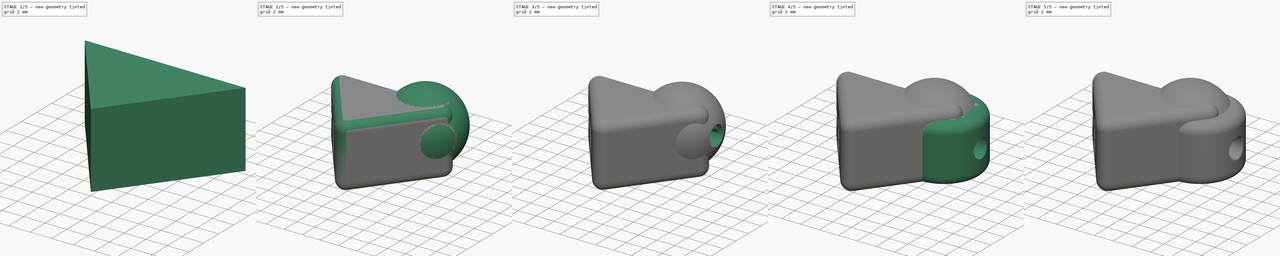
[diagram: build sequence overview — one tinted view per stage of 5, left to right]
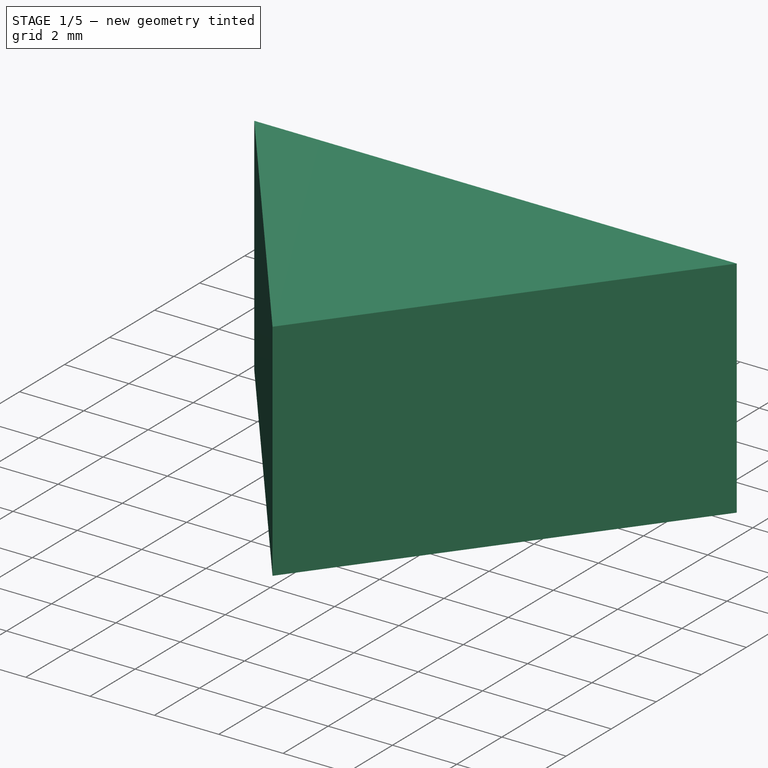
[diagram: stage 1 of 5 — iso view after this stage's code; geometry added in this stage tinted green]
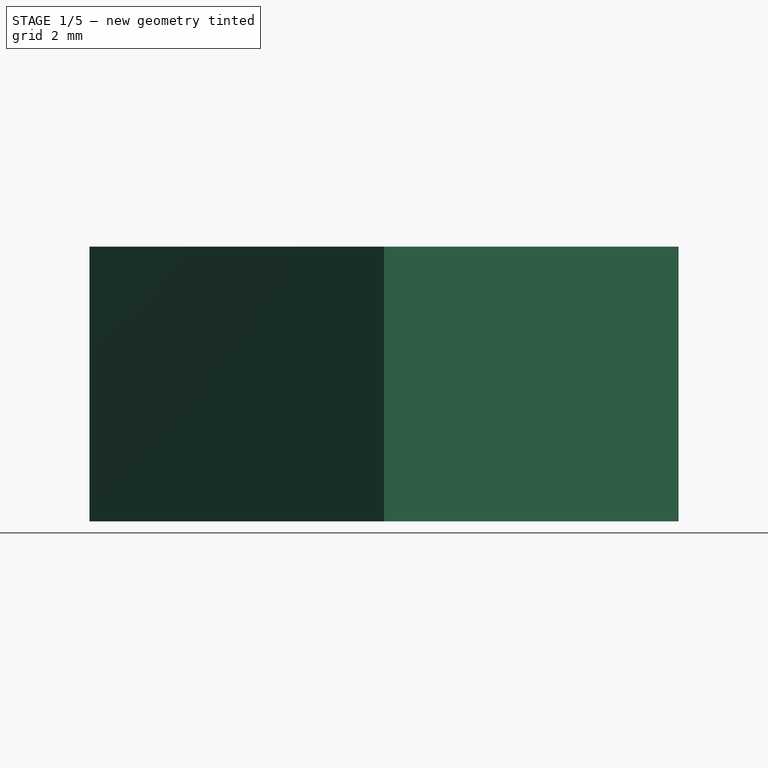
[diagram: stage 1 of 5 — front view after this stage's code; geometry added in this stage tinted green]
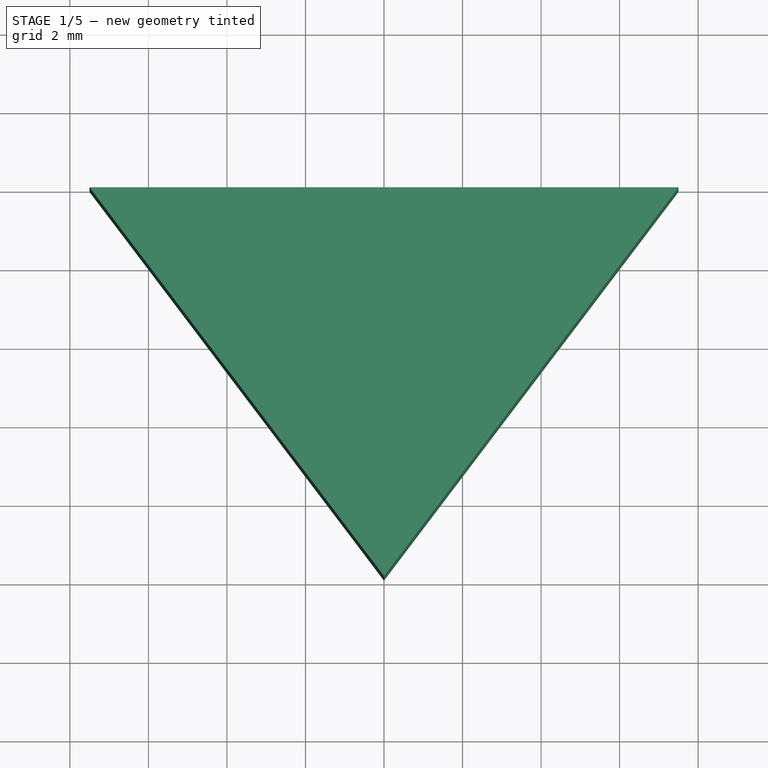
[diagram: stage 1 of 5 — top view after this stage's code; geometry added in this stage tinted green]
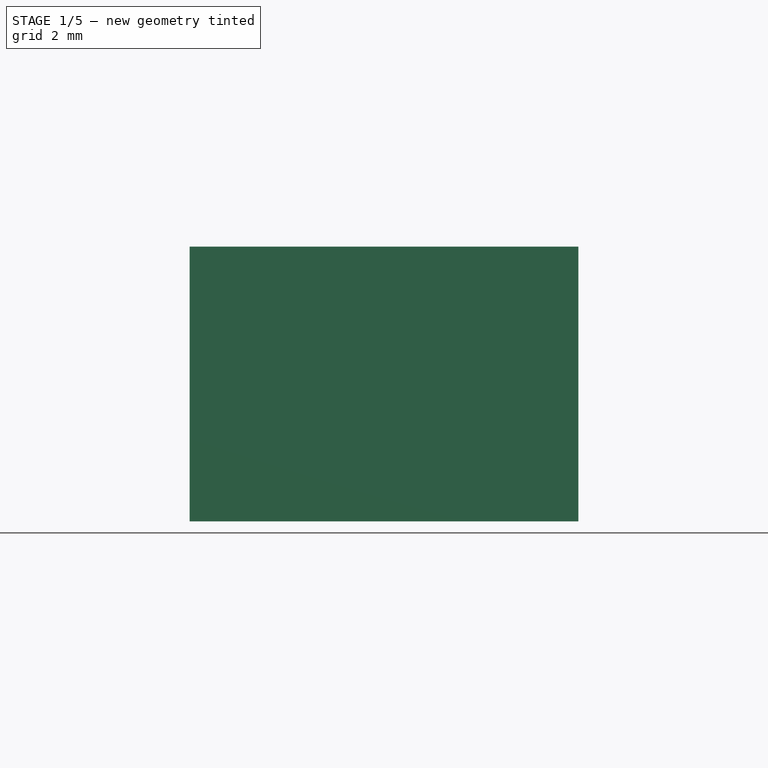
[diagram: stage 1 of 5 — right view after this stage's code; geometry added in this stage tinted green]
FCSTD DOCUMENT  (FreeCAD 0.19R24276 (Git))
Label: mon-cheri
License: All rights reserved
LicenseURL: http://en.wikipedia.org/wiki/All_rights_reserved
objects: Sketcher::SketchObject×16, PartDesign::Fillet×16, PartDesign::Hole×8, PartDesign::Pad×6, PartDesign::Body×6, PartDesign::Pocket×4, App::DocumentObjectGroup×3, PartDesign::Mirrored×2, PartDesign::Chamfer×2, PartDesign::Plane×2, Spreadsheet::Sheet×1
note: 98 computed .brp shape members not serialized (recipe doc carries the construction recipe); baked Part::Feature solids carry a one-line shape summary decoded from their .brp

FEATURE [Sketcher::SketchObject] Sketch  label="BodySketch-Tri"
  FullyConstrained = true
  MapMode = 5
  Placement = pos=(0,0,0) rot=(1,0,0;3.14159rad)
  expr: Constraints[5] = Spreadsheet.TriHeight
  expr: Constraints[7] = Spreadsheet.TriLength / 2
  sketch-geometry (3):
    g0: LineSegment StartX=0 StartY=0 StartZ=0 EndX=-7.5 EndY=0 EndZ=0
    g1: LineSegment StartX=-7.5 StartY=0 StartZ=0 EndX=0 EndY=9.9 EndZ=0
    g2: LineSegment StartX=0 StartY=9.9 StartZ=0 EndX=0 EndY=0 EndZ=0
  constraints (8):
    c: Coincident(g0,g-1)
    c: PointOnObject(g0,g-1)
    c: PointOnObject(g1,g-2)
    c: Coincident(g2,g1)
    c: Coincident(g0,g1)
    c: DistanceY(g2,g2) = 9.9
    c: Coincident(g2,g0)
    c: DistanceX(g0,g0) = 7.5
FEATURE [PartDesign::Pad] Pad  label="BodyHalf-Tri-m3"
  Direction = (1,1,1)
  Length = 5
  Length2 = 100
  Placement = pos=(0,0,0) rot=(1,0,0;3.14159rad)
  Profile = -> Sketch
  Reversed = true
  Type = 0
  expr: Length = Spreadsheet.TriWidth
FEATURE [PartDesign::Mirrored] Mirrored  label="MirrorBody-Tri-m3"
  BaseFeature = -> Pad
  MirrorPlane = -> Sketch [V_Axis]
  Originals = -> [Pad]
  Placement = pos=(0,0,0) rot=(1,0,0;3.14159rad)
  Refine = true
FEATURE [PartDesign::Fillet] Fillet  label="FilletEdges-Tri-m3"
  Base = -> Mirrored [Face2,Face1,Face3]
  BaseFeature = -> Mirrored
  Placement = pos=(0,0,0) rot=(1,0,0;3.14159rad)
  Radius = 1
  SupportTransform = false
FEATURE [PartDesign::Body] Body002  label="ball-m3"
  Group = -> [Sketch005,Pad002,Fillet004,Sketch006,Hole001,Sketch007,Pocket002,Chamfer,Fillet005,Fillet009]
  Origin = -> Origin002
  Placement = pos=(0,31.2,-0.4) rot=(0,0,1;0rad)
  Tip = -> Fillet009
FEATURE [Sketcher::SketchObject] Sketch010  label="BoltSketch-Tri-m3"
  ExternalGeometry = -> [Fillet]
  FullyConstrained = true
  MapMode = 5
  Placement = pos=(-4.76517,-3.60998,-4e-16) rot=(0.331544,0.667113,-0.667113;3.78187rad)
  Support = -> [Fillet]
  expr: Constraints[2] = Spreadsheet.BoltHole
  sketch-geometry (2):
    g0: LineSegment StartX=2.5168 StartY=-1 StartZ=0 EndX=-6.57121 EndY=-4 EndZ=0
    g1: Circle CenterX=-2.02721 CenterY=-2.5 CenterZ=0 NormalX=0 NormalY=0 NormalZ=1 AngleXU=0 Radius=1.45
  constraints (4):
    c: Coincident(g0,g-3)
    c: Coincident(g0,g-4)
    c: Diameter(g1) = 2.9
    c: Symmetric(g0,g0,g1)
FEATURE [PartDesign::Hole] Hole004  label="BoltHole-Tri-m3"
  BaseFeature = -> Fillet
  Depth = 5
  DepthType = 0
  Diameter = 2.9
  DrillForDepth = false
  DrillPoint = 1
  DrillPointAngle = 118
  HoleCutCountersinkAngle = 90
  HoleCutCustomValues = false
  HoleCutDepth = 0
  HoleCutDiameter = 6.1
  HoleCutType = 0
  ModelActualThread = false
  Placement = pos=(0,0,0) rot=(1,0,0;3.14159rad)
  Profile = -> Sketch010
  Tapered = false
  TaperedAngle = 90
  ThreadAngle = 0
  ThreadClass = 0
  ThreadCutOffInner = 0
  ThreadCutOffOuter = 0
  ThreadDirection = 0
  ThreadFit = 0
  ThreadPitch = 0
  ThreadSize = 0
  ThreadType = 0
  Threaded = false
  expr: Diameter = Spreadsheet.BoltHole
FEATURE [PartDesign::Hole] Hole003  label="CableHole-Tri-m3"
  BaseFeature = -> Hole004
  Depth = 17
  DepthType = 1
  Diameter = 2
  DrillForDepth = false
  DrillPoint = 1
  DrillPointAngle = 118
  HoleCutCountersinkAngle = 90
  HoleCutCustomValues = false
  HoleCutDepth = 0
  HoleCutDiameter = 10
  HoleCutType = 0
  ModelActualThread = false
  Placement = pos=(0,0,0) rot=(1,0,0;3.14159rad)
  Profile = -> Sketch009
  Reversed = true
  Tapered = true
  TaperedAngle = 90
  ThreadAngle = 0
  ThreadClass = 0
  ThreadCutOffInner = 0
  ThreadCutOffOuter = 0
  ThreadDirection = 0
  ThreadFit = 0
  ThreadPitch = 0
  ThreadSize = 0
  ThreadType = 0
  Threaded = false
  expr: Diameter = Spreadsheet.CableBore
  expr: HoleCutDiameter = 10
FEATURE [Sketcher::SketchObject] Sketch013  label="BodySketch-Tri-m4"
  FullyConstrained = true
  MapMode = 5
  Placement = pos=(0,0,0) rot=(1,0,0;3.14159rad)
  expr: Constraints[7] = Spreadsheet.TriLength / 2
  expr: Constraints[5] = Spreadsheet.TriHeight
  sketch-geometry (3):
    g0: LineSegment StartX=0 StartY=0 StartZ=0 EndX=-7.5 EndY=0 EndZ=0
    g1: LineSegment StartX=-7.5 StartY=0 StartZ=0 EndX=0 EndY=9.9 EndZ=0
    g2: LineSegment StartX=0 StartY=9.9 StartZ=0 EndX=0 EndY=0 EndZ=0
  constraints (8):
    c: Coincident(g0,g-1)
    c: PointOnObject(g0,g-1)
    c: PointOnObject(g1,g-2)
    c: Coincident(g2,g1)
    c: Coincident(g0,g1)
    c: DistanceY(g2,g2) = 9.9
    c: Coincident(g2,g0)
    c: DistanceX(g0,g0) = 7.5
FEATURE [PartDesign::Plane] DatumPlane001  label="CableHoleDepth-Tri-m4"
  AttachmentOffset = pos=(0,0,-4) rot=(0,0,1;0rad)
  Length = 60
  MapMode = 5
  Placement = pos=(4,-9e-16,9e-16) rot=(-0.57735,0.57735,0.57735;4.18879rad)
  ResizeMode = 0
  Support = -> [YZ_Plane003]
  Width = 60
  expr: .AttachmentOffset.Base.z = -Spreadsheet.ExtraDepth
FEATURE [Sketcher::SketchObject] Sketch012  label="CableHoleSketch-Tri-m4"
  FullyConstrained = false
  MapMode = 5
  Placement = pos=(4,-9e-16,9e-16) rot=(-0.57735,0.57735,0.57735;4.18879rad)
  Support = -> [DatumPlane001]
  expr: Constraints[0] = Spreadsheet.CableBore
  expr: Constraints[4] = Spreadsheet.TriWidthM4 / 2
  sketch-geometry (2):
    g0: Circle CenterX=2.10386 CenterY=3.5 CenterZ=0 NormalX=0 NormalY=0 NormalZ=1 AngleXU=0 Radius=1
    g1: LineSegment StartX=1.60386 StartY=3.5 StartZ=0 EndX=2.10386 EndY=3.5 EndZ=0
  constraints (5):
    c: Diameter(g0) = 2
    c: Coincident(g0,g1)
    c: DistanceX(g1,g1) = 0.5
    c: Horizontal(g1)
    c: DistanceY(g-1,g0) = 3.5
FEATURE [PartDesign::Pad] Pad003  label="BodyHalf-Tri-m4"
  Direction = (1,1,1)
  Length = 7
  Length2 = 100
  Placement = pos=(0,0,0) rot=(1,0,0;3.14159rad)
  Profile = -> Sketch013
  Reversed = true
  Type = 0
  expr: Length = Spreadsheet.TriWidthM4
FEATURE [PartDesign::Mirrored] Mirrored001  label="MirrorBody-Tri-m4"
  BaseFeature = -> Pad003
  MirrorPlane = -> Sketch013 [V_Axis]
  Originals = -> [Pad003]
  Placement = pos=(0,0,0) rot=(1,0,0;3.14159rad)
  Refine = true
FEATURE [PartDesign::Body] Body003  label="tri-m4"
  Group = -> [Sketch013,Pad003,Mirrored001,Fillet010,DatumPlane001,Sketch012,Sketch011,Hole005,Hole006,Fillet017]
  Origin = -> Origin003
  Placement = pos=(0,0,17) rot=(0,0,1;0rad)
  Tip = -> Fillet017
FEATURE [PartDesign::Fillet] Fillet018  label="HoleFillet-Tri-m3"
  Base = -> Hole003 [Face1]
  BaseFeature = -> Hole003
  Placement = pos=(0,0,0) rot=(1,0,0;3.14159rad)
  Radius = 0.17
  SupportTransform = false
FEATURE [PartDesign::Body] Body  label="tri-m3"
  Group = -> [Sketch,Pad,Mirrored,Fillet,DatumPlane,Sketch009,Sketch010,Hole004,Hole003,Fillet018]
  Origin = -> Origin
  Tip = -> Fillet018
FEATURE [App::DocumentObjectGroup] Group  label="tri"
  Group = -> [Body,Body003]
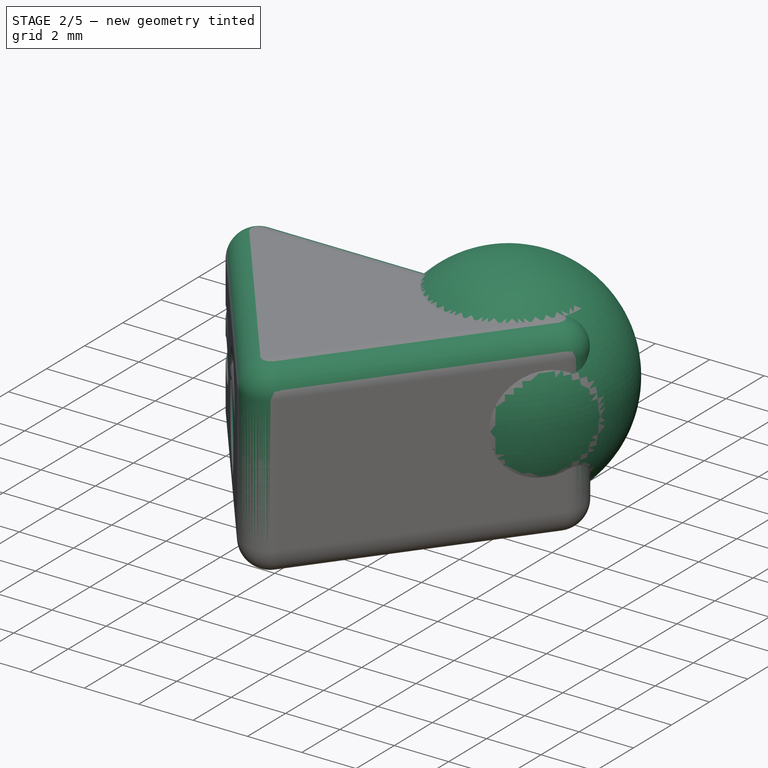
[diagram: stage 2 of 5 — iso view after this stage's code; geometry added in this stage tinted green]
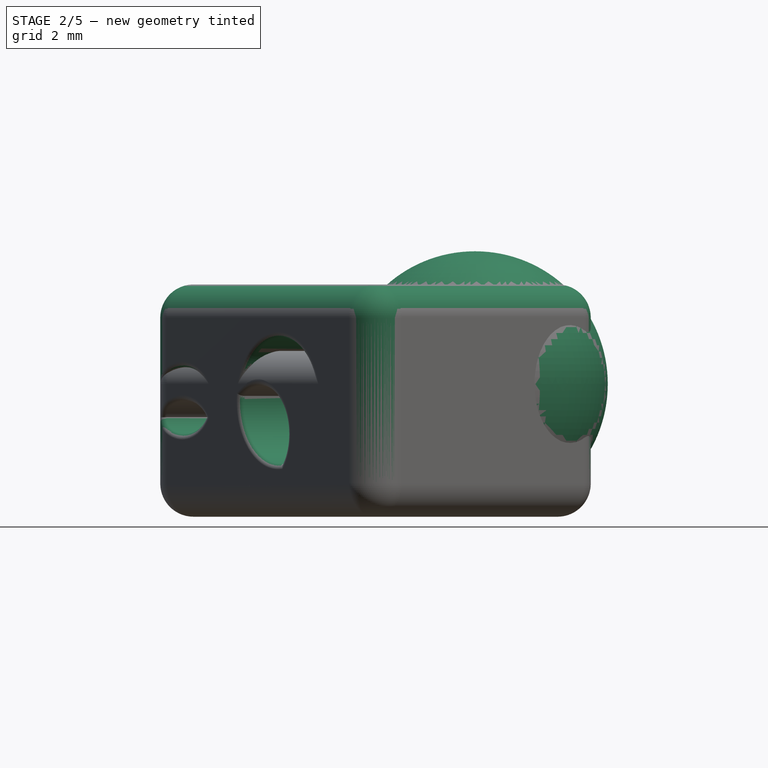
[diagram: stage 2 of 5 — front view after this stage's code; geometry added in this stage tinted green]
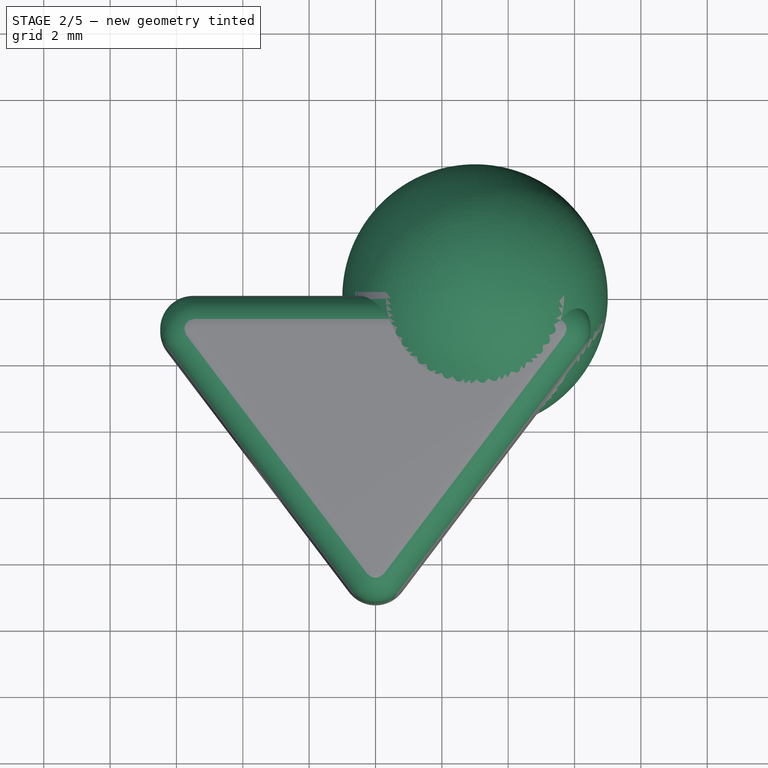
[diagram: stage 2 of 5 — top view after this stage's code; geometry added in this stage tinted green]
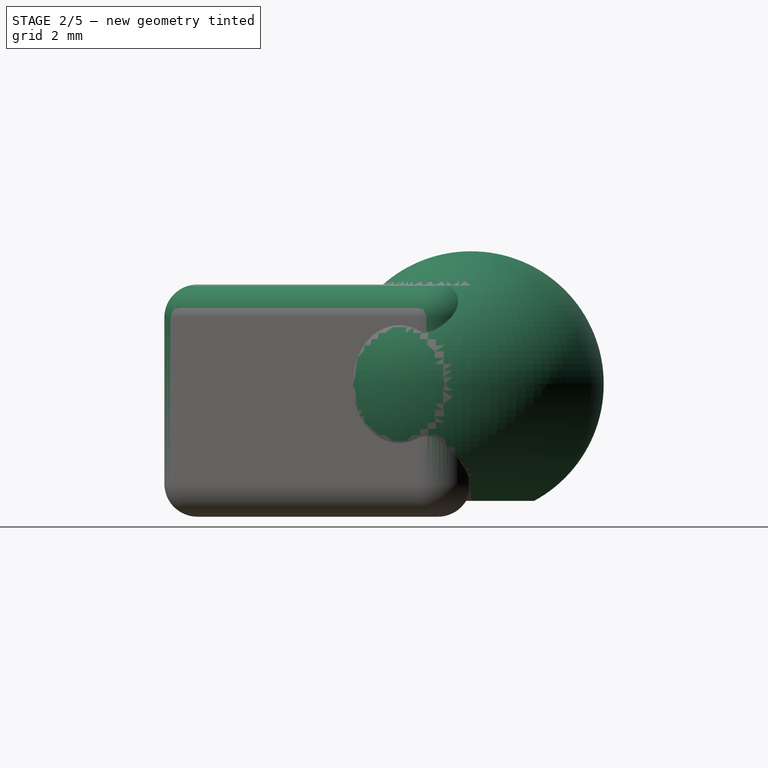
[diagram: stage 2 of 5 — right view after this stage's code; geometry added in this stage tinted green]
FEATURE [PartDesign::Fillet] Fillet010  label="FilletEdges-Tri-m4"
  Base = -> Mirrored001 [Face2,Face1,Face3]
  BaseFeature = -> Mirrored001
  Placement = pos=(0,0,0) rot=(1,0,0;3.14159rad)
  Radius = 1
  SupportTransform = false
FEATURE [Sketcher::SketchObject] Sketch011  label="BoltSketch-Tri-m4"
  ExternalGeometry = -> [Fillet010]
  FullyConstrained = true
  MapMode = 5
  Placement = pos=(-4.76517,-3.60998,-4e-16) rot=(0.331544,0.667113,-0.667113;3.78187rad)
  Support = -> [Fillet010]
  expr: Constraints[2] = Spreadsheet.BoltHoleM4
  sketch-geometry (3):
    g0: LineSegment StartX=2.5168 StartY=-1 StartZ=0 EndX=-6.57121 EndY=-6 EndZ=0
    g1: Circle CenterX=-3.02721 CenterY=-3.5 CenterZ=0 NormalX=0 NormalY=0 NormalZ=1 AngleXU=0 Radius=1.9
    g2: LineSegment StartX=-2.02721 StartY=-3.5 StartZ=0 EndX=-3.02721 EndY=-3.5 EndZ=0
  constraints (7):
    c: Coincident(g0,g-3)
    c: Coincident(g0,g-4)
    c: Diameter(g1) = 3.8
    c: Horizontal(g2)
    c: Symmetric(g0,g0,g2)
    c: Coincident(g1,g2)
    c: DistanceX(g2,g2) = 1
FEATURE [PartDesign::Hole] Hole005  label="BoltHole-Tri-m4"
  BaseFeature = -> Fillet010
  Depth = 6
  DepthType = 0
  Diameter = 3.8
  DrillForDepth = false
  DrillPoint = 1
  DrillPointAngle = 118
  HoleCutCountersinkAngle = 90
  HoleCutCustomValues = false
  HoleCutDepth = 0
  HoleCutDiameter = 6.1
  HoleCutType = 0
  ModelActualThread = false
  Placement = pos=(0,0,0) rot=(1,0,0;3.14159rad)
  Profile = -> Sketch011
  Tapered = false
  TaperedAngle = 90
  ThreadAngle = 0
  ThreadClass = 0
  ThreadCutOffInner = 0
  ThreadCutOffOuter = 0
  ThreadDirection = 0
  ThreadFit = 0
  ThreadPitch = 0
  ThreadSize = 0
  ThreadType = 0
  Threaded = false
  expr: Diameter = Spreadsheet.BoltHoleM4
FEATURE [PartDesign::Hole] Hole006  label="CableHole-Tri-m4"
  BaseFeature = -> Hole005
  Depth = 17
  DepthType = 1
  Diameter = 2
  DrillForDepth = false
  DrillPoint = 1
  DrillPointAngle = 118
  HoleCutCountersinkAngle = 90
  HoleCutCustomValues = false
  HoleCutDepth = 0
  HoleCutDiameter = 10
  HoleCutType = 0
  ModelActualThread = false
  Placement = pos=(0,0,0) rot=(1,0,0;3.14159rad)
  Profile = -> Sketch012
  Reversed = true
  Tapered = true
  TaperedAngle = 90
  ThreadAngle = 0
  ThreadClass = 0
  ThreadCutOffInner = 0
  ThreadCutOffOuter = 0
  ThreadDirection = 0
  ThreadFit = 0
  ThreadPitch = 0
  ThreadSize = 0
  ThreadType = 0
  Threaded = false
  expr: HoleCutDiameter = 10
  expr: Diameter = Spreadsheet.CableBore
FEATURE [PartDesign::Body] Body004  label="barrel-m4"
  Group = -> [Sketch015,Pad004,Hole007,Sketch014,Pocket003,Fillet011,Fillet012,Fillet013]
  Origin = -> Origin004
  Placement = pos=(0,14,17) rot=(0,0,1;0rad)
  Tip = -> Fillet013
FEATURE [Sketcher::SketchObject] Sketch016  label="BoltHoleSketch-Ball001"
  FullyConstrained = true
  MapMode = 5
  Support = -> [XY_Plane005]
  expr: .Constraints.Offset = Sketch018.Constraints[1]
  expr: Constraints[2] = Sketch018.Constraints[2]
  expr: Constraints[4] = Spreadsheet.BoltHole
  sketch-geometry (2):
    g0: Circle CenterX=3 CenterY=0 CenterZ=0 NormalX=0 NormalY=0 NormalZ=1 AngleXU=0 Radius=1.45
    g1: Circle CenterX=3 CenterY=0 CenterZ=0 NormalX=0 NormalY=0 NormalZ=1 AngleXU=0 Radius=4
  constraints (5):
    c: PointOnObject(g0,g-1)
    c: DistanceX(g-1,g1) = 3  'Offset'
    c: Diameter(g1) = 8
    c: Coincident(g0,g1)
    c: Diameter(g0) = 2.9
FEATURE [Sketcher::SketchObject] Sketch017
  AttachmentOffset = pos=(0,0,0.5) rot=(0,0,1;0rad)
  FullyConstrained = true
  MapMode = 5
  Placement = pos=(0.5,-1e-16,1e-16) rot=(0.57735,0.57735,0.57735;2.0944rad)
  Support = -> [YZ_Plane005]
  expr: Constraints[1] = Spreadsheet.CableBore
  expr: Constraints[2] = Spreadsheet.BallDiameterM4 / 2
  sketch-geometry (1):
    g0: Circle CenterX=0 CenterY=4 CenterZ=0 NormalX=0 NormalY=0 NormalZ=1 AngleXU=0 Radius=1
  constraints (3):
    c: PointOnObject(g0,g-2)
    c: Diameter(g0) = 2
    c: DistanceY(g-1,g0) = 4
FEATURE [Sketcher::SketchObject] Sketch018  label="BodySketch-Ball001"
  FullyConstrained = true
  MapMode = 5
  Support = -> [XY_Plane005]
  expr: Constraints[2] = Spreadsheet.BallDiameterM4
  expr: .Constraints.Offset = Spreadsheet.ExtraDepth - 1mm
  sketch-geometry (1):
    g0: Circle CenterX=3 CenterY=0 CenterZ=0 NormalX=0 NormalY=0 NormalZ=1 AngleXU=0 Radius=4
  constraints (3):
    c: PointOnObject(g0,g-1)
    c: DistanceX(g-1,g0) = 3  'Offset'
    c: Diameter(g0) = 8
FEATURE [PartDesign::Pad] Pad005  label="Body-Ball-m4"
  Direction = (1,1,1)
  Length = 8
  Length2 = 100
  Profile = -> Sketch018
  Type = 0
  expr: Length = Spreadsheet.BallDiameterM4
FEATURE [PartDesign::Fillet] Fillet016  label="FilletEdges-Ball-m4"
  Base = -> Pad005 [Face2,Face3]
  BaseFeature = -> Pad005
  Radius = 3.99
  SupportTransform = false
  expr: Radius = Spreadsheet.BallDiameterM4 / 2 - 0.01mm
FEATURE [PartDesign::Hole] Hole008  label="BoltHole-Ball-m4"
  BaseFeature = -> Fillet016
  Depth = 4
  DepthType = 0
  Diameter = 3.8
  DrillForDepth = false
  DrillPoint = 0
  DrillPointAngle = 116
  HoleCutCountersinkAngle = 90
  HoleCutCustomValues = false
  HoleCutDepth = 0
  HoleCutDiameter = 6.1
  HoleCutType = 0
  ModelActualThread = false
  Profile = -> Sketch016
  Reversed = true
  Tapered = false
  TaperedAngle = 90
  ThreadAngle = 60
  ThreadClass = 0
  ThreadCutOffInner = 0.0541266
  ThreadCutOffOuter = 0.108253
  ThreadDirection = 0
  ThreadFit = 0
  ThreadPitch = 0.5
  ThreadSize = 0
  ThreadType = 0
  Threaded = false
  expr: Diameter = Spreadsheet.BoltHoleM4
  expr: Depth = Spreadsheet.BallDiameter / 2 + 0.5mm
FEATURE [PartDesign::Body] Body005  label="ball-m4"
  Group = -> [Sketch018,Pad005,Fillet016,Sketch016,Hole008,Sketch017,Pocket004,Chamfer001,Fillet014,Fillet015]
  Origin = -> Origin005
  Placement = pos=(0,31.2,16.6) rot=(0,0,1;0rad)
  Tip = -> Fillet015
FEATURE [App::DocumentObjectGroup] Group001  label="barrel"
  Group = -> [Body001,Body004]
FEATURE [App::DocumentObjectGroup] Group002  label="ball"
  Group = -> [Body002,Body005]
FEATURE [PartDesign::Fillet] Fillet017  label="HoleFillter-Tri-m4"
  Base = -> Hole006 [Edge8,Edge5]
  BaseFeature = -> Hole006
  Placement = pos=(0,0,0) rot=(1,0,0;3.14159rad)
  Radius = 0.175
  SupportTransform = false
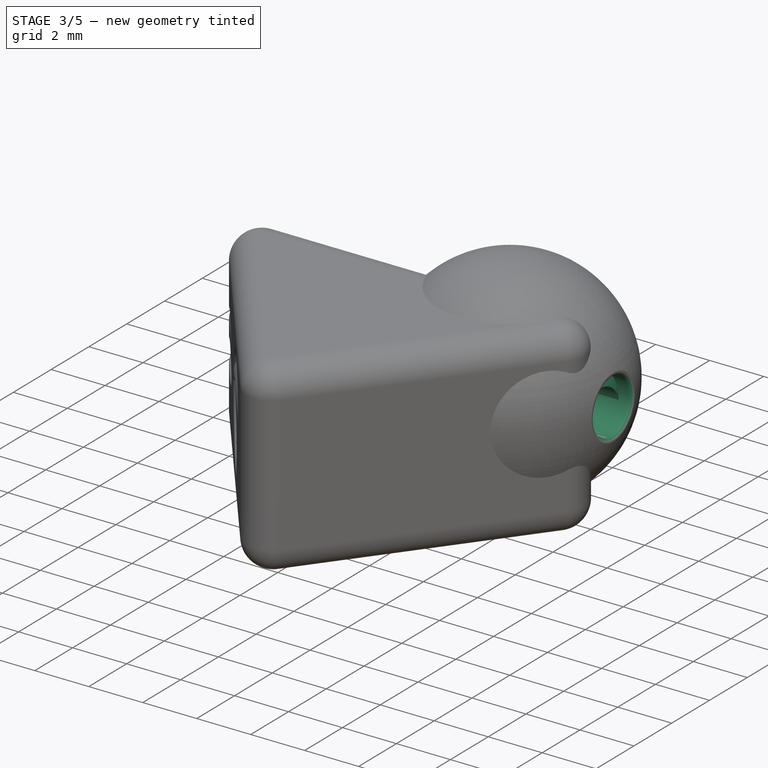
[diagram: stage 3 of 5 — iso view after this stage's code; geometry added in this stage tinted green]
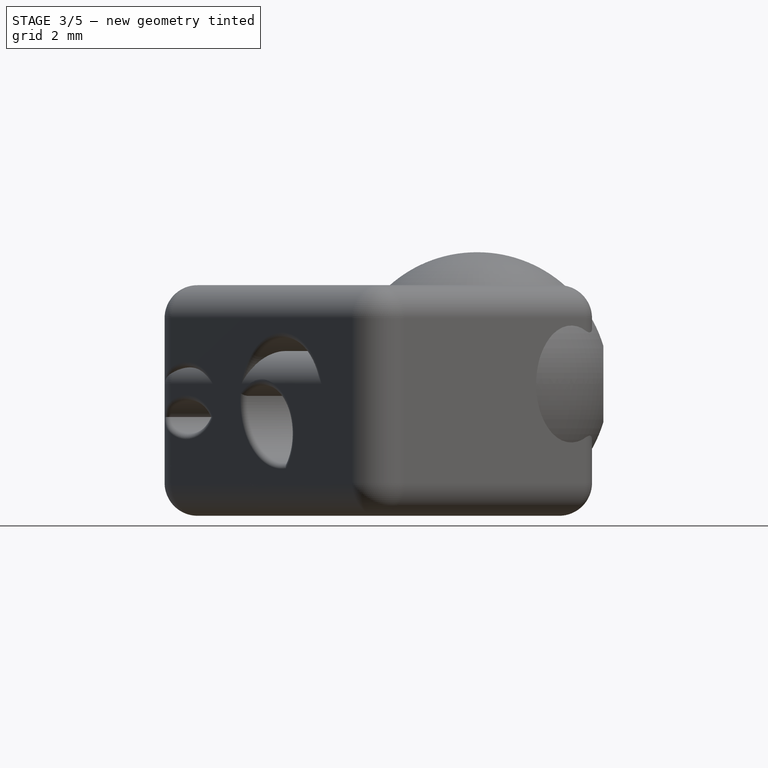
[diagram: stage 3 of 5 — front view after this stage's code; geometry added in this stage tinted green]
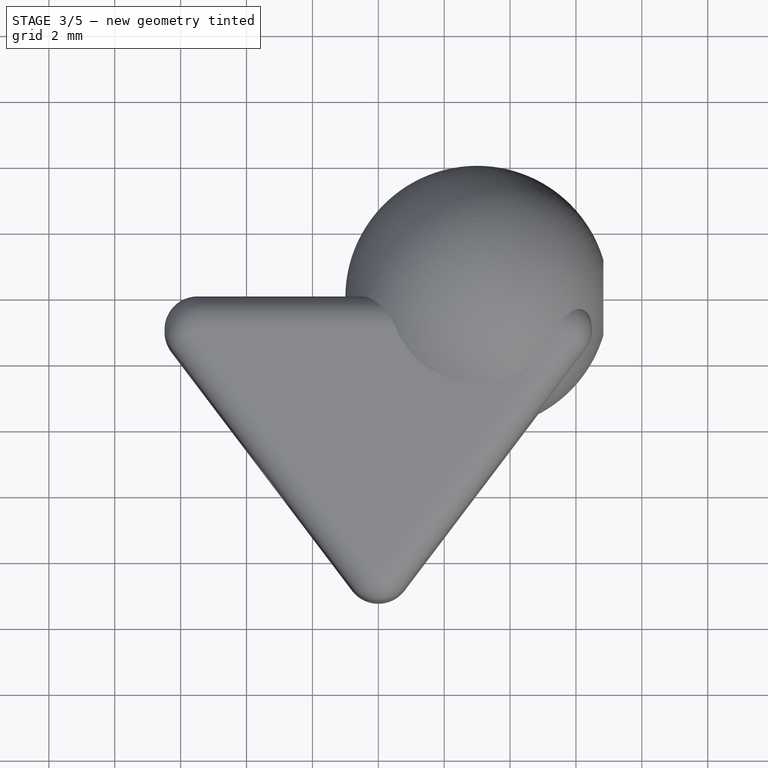
[diagram: stage 3 of 5 — top view after this stage's code; geometry added in this stage tinted green]
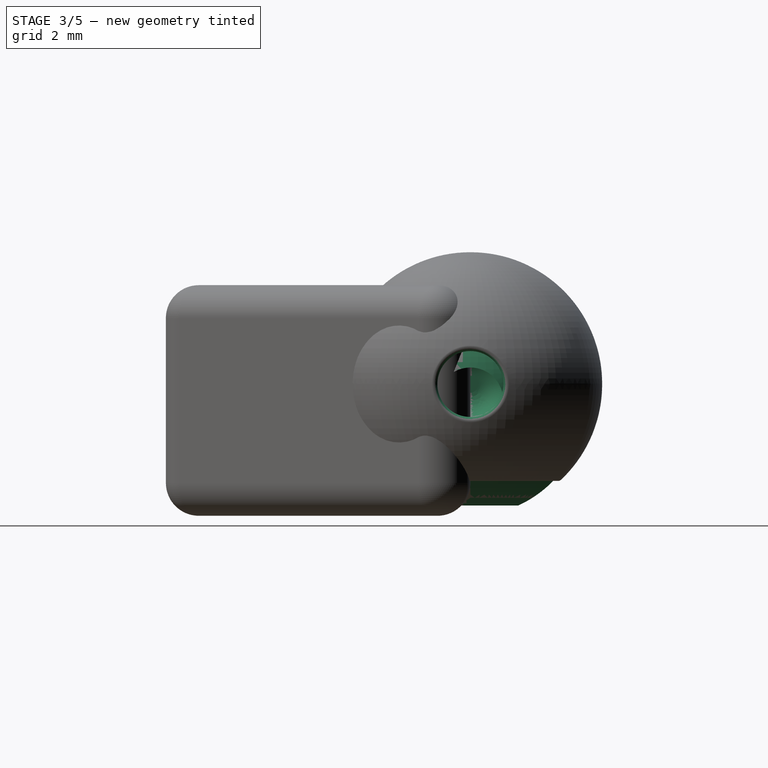
[diagram: stage 3 of 5 — right view after this stage's code; geometry added in this stage tinted green]
FEATURE [Sketcher::SketchObject] Sketch005  label="BodySketch-Ball"
  FullyConstrained = true
  MapMode = 5
  Support = -> [XY_Plane002]
  expr: .Constraints.Offset = Spreadsheet.ExtraDepth - 1mm
  expr: Constraints[2] = Spreadsheet.BallDiameter
  sketch-geometry (1):
    g0: Circle CenterX=3 CenterY=0 CenterZ=0 NormalX=0 NormalY=0 NormalZ=1 AngleXU=0 Radius=3.5
  constraints (3):
    c: PointOnObject(g0,g-1)
    c: DistanceX(g-1,g0) = 3  'Offset'
    c: Diameter(g0) = 7
FEATURE [PartDesign::Pad] Pad002  label="Body-Ball-m3"
  Direction = (1,1,1)
  Length = 7
  Length2 = 100
  Profile = -> Sketch005
  Type = 0
  expr: Length = Spreadsheet.BallDiameter
FEATURE [PartDesign::Fillet] Fillet004  label="FilletEdges-Ball-m3"
  Base = -> Pad002 [Face2,Face3]
  BaseFeature = -> Pad002
  Radius = 3.49
  SupportTransform = false
  expr: Radius = Spreadsheet.BallDiameter / 2 - 0.01mm
FEATURE [Sketcher::SketchObject] Sketch006  label="BoltHoleSketch-Ball"
  FullyConstrained = true
  MapMode = 5
  Support = -> [XY_Plane002]
  expr: Constraints[4] = Spreadsheet.BoltHole
  expr: Constraints[2] = Sketch005.Constraints[2]
  expr: .Constraints.Offset = Sketch005.Constraints[1]
  sketch-geometry (2):
    g0: Circle CenterX=3 CenterY=0 CenterZ=0 NormalX=0 NormalY=0 NormalZ=1 AngleXU=0 Radius=1.45
    g1: Circle CenterX=3 CenterY=0 CenterZ=0 NormalX=0 NormalY=0 NormalZ=1 AngleXU=0 Radius=3.5
  constraints (5):
    c: PointOnObject(g0,g-1)
    c: DistanceX(g-1,g1) = 3  'Offset'
    c: Diameter(g1) = 7
    c: Coincident(g0,g1)
    c: Diameter(g0) = 2.9
FEATURE [PartDesign::Hole] Hole001  label="BoltHole-Ball-m3"
  BaseFeature = -> Fillet004
  Depth = 4
  DepthType = 0
  Diameter = 2.9
  DrillForDepth = false
  DrillPoint = 0
  DrillPointAngle = 116
  HoleCutCountersinkAngle = 90
  HoleCutCustomValues = false
  HoleCutDepth = 0
  HoleCutDiameter = 6.1
  HoleCutType = 0
  ModelActualThread = false
  Profile = -> Sketch006
  Reversed = true
  Tapered = false
  TaperedAngle = 90
  ThreadAngle = 60
  ThreadClass = 0
  ThreadCutOffInner = 0.0541266
  ThreadCutOffOuter = 0.108253
  ThreadDirection = 0
  ThreadFit = 0
  ThreadPitch = 0.5
  ThreadSize = 0
  ThreadType = 0
  Threaded = false
  expr: Depth = Spreadsheet.BallDiameter / 2 + 0.5mm
  expr: Diameter = Spreadsheet.BoltHole
FEATURE [Sketcher::SketchObject] Sketch007
  AttachmentOffset = pos=(0,0,0.5) rot=(0,0,1;0rad)
  FullyConstrained = true
  MapMode = 5
  Placement = pos=(0.5,-1e-16,1e-16) rot=(0.57735,0.57735,0.57735;2.0944rad)
  Support = -> [YZ_Plane002]
  expr: Constraints[2] = Spreadsheet.BallDiameter / 2
  expr: Constraints[1] = Spreadsheet.CableBore
  sketch-geometry (1):
    g0: Circle CenterX=0 CenterY=3.5 CenterZ=0 NormalX=0 NormalY=0 NormalZ=1 AngleXU=0 Radius=1
  constraints (3):
    c: PointOnObject(g0,g-2)
    c: Diameter(g0) = 2
    c: DistanceY(g-1,g0) = 3.5
FEATURE [PartDesign::Pocket] Pocket002  label="CableHole-Ball-m3"
  BaseFeature = -> Hole001
  Length = 5
  Length2 = 100
  Profile = -> Sketch007
  Reversed = true
  Type = 1
FEATURE [PartDesign::Pocket] Pocket004  label="CableHole-Bal-m4"
  BaseFeature = -> Hole008
  Length = 5
  Length2 = 100
  Profile = -> Sketch017
  Reversed = true
  Type = 1
FEATURE [PartDesign::Chamfer] Chamfer001  label="BaseChamfer-Ball-m4"
  Angle = 44
  Base = -> Pocket004 [Edge8]
  BaseFeature = -> Pocket004
  ChamferType = 2
  FlipDirection = false
  Size = 1
  Size2 = 1
  SupportTransform = false
FEATURE [PartDesign::Fillet] Fillet014  label="FilletCableHoleEdge-Ball-m4"
  Base = -> Chamfer001 [Face4,Face2,Edge3]
  BaseFeature = -> Chamfer001
  Radius = 0.13
  SupportTransform = false
FEATURE [PartDesign::Fillet] Fillet015  label="FilletCableHoleInside-Ball-m4"
  Base = -> Fillet014 [Face18]
  BaseFeature = -> Fillet014
  Radius = 0.75
  SupportTransform = false
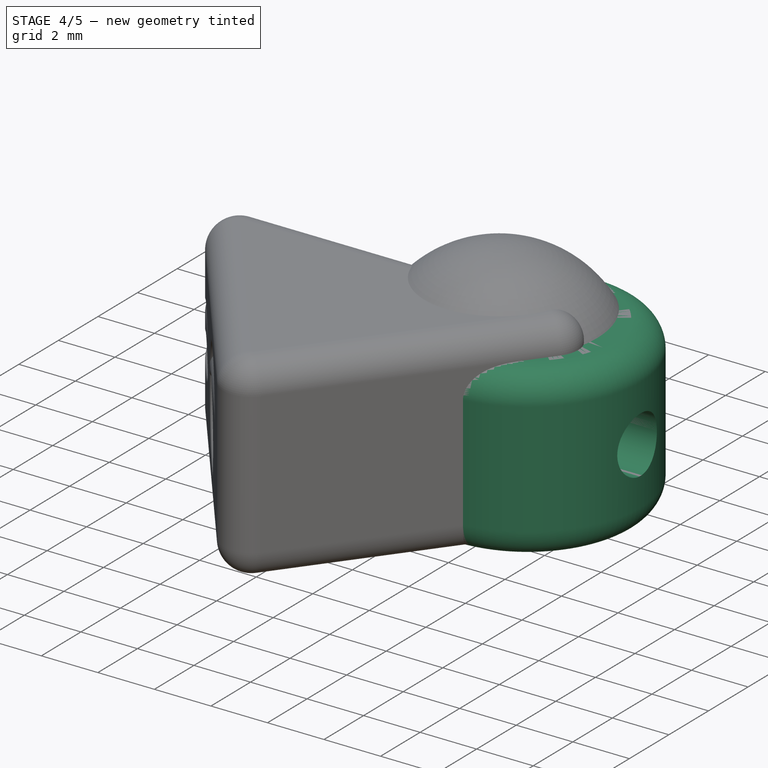
[diagram: stage 4 of 5 — iso view after this stage's code; geometry added in this stage tinted green]
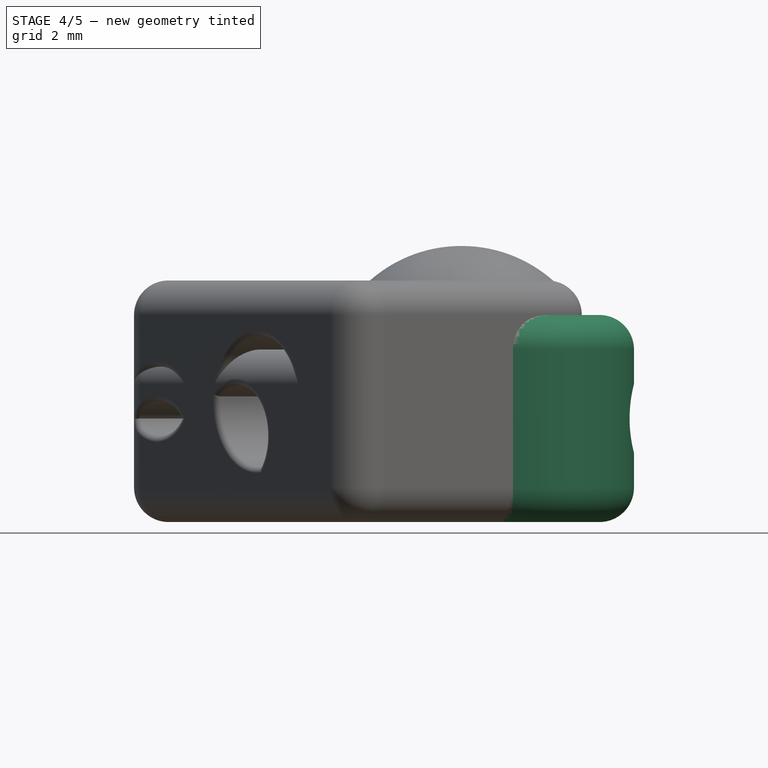
[diagram: stage 4 of 5 — front view after this stage's code; geometry added in this stage tinted green]
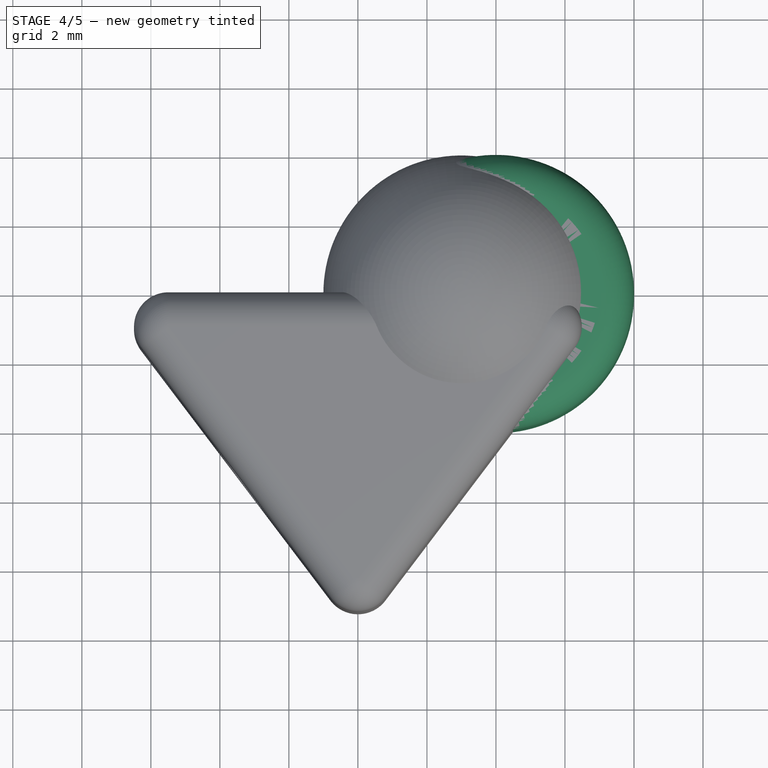
[diagram: stage 4 of 5 — top view after this stage's code; geometry added in this stage tinted green]
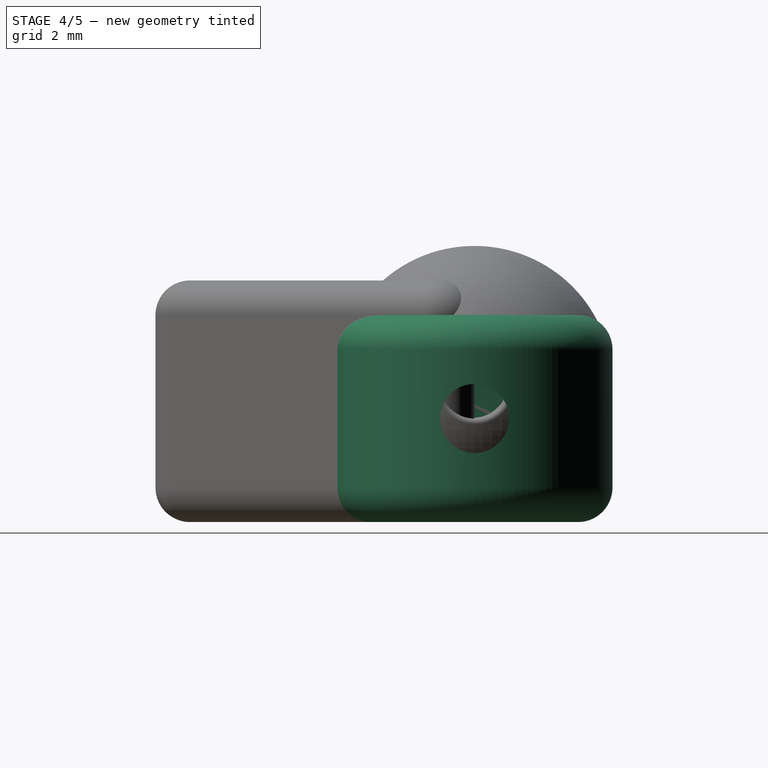
[diagram: stage 4 of 5 — right view after this stage's code; geometry added in this stage tinted green]
FEATURE [PartDesign::Chamfer] Chamfer  label="BaseChamfer-Ball-m3"
  Angle = 41
  Base = -> Pocket002 [Edge8]
  BaseFeature = -> Pocket002
  ChamferType = 2
  FlipDirection = false
  Size = 1
  Size2 = 1
  SupportTransform = false
FEATURE [PartDesign::Fillet] Fillet005  label="FilletCableHoleEdge-Ball-m3"
  Base = -> Chamfer [Face4,Face2,Edge3]
  BaseFeature = -> Chamfer
  Radius = 0.13
  SupportTransform = false
FEATURE [PartDesign::Body] Body001  label="barrel-m3"
  Group = -> [Sketch002,Pad001,Hole,Sketch003,Pocket,Fillet002,Fillet003,Fillet008]
  Origin = -> Origin001
  Placement = pos=(0,14,0) rot=(0,0,1;0rad)
  Tip = -> Fillet008
FEATURE [PartDesign::Fillet] Fillet009  label="FilletCableHoleInside-Ball-m3"
  Base = -> Fillet005 [Face18]
  BaseFeature = -> Fillet005
  Radius = 0.75
  SupportTransform = false
FEATURE [Sketcher::SketchObject] Sketch015  label="BodySketch-Barrel001"
  FullyConstrained = true
  MapMode = 5
  Support = -> [XY_Plane004]
  expr: .Constraints.Offset = Spreadsheet.ExtraDepth
  expr: .Constraints.BarrelRadius = Spreadsheet.BarrelDiameter / 2
  sketch-geometry (1):
    g0: Circle CenterX=4 CenterY=0 CenterZ=0 NormalX=0 NormalY=0 NormalZ=1 AngleXU=0 Radius=4
  constraints (3):
    c: PointOnObject(g0,g-1)
    c: DistanceX(g-1,g0) = 4  'Offset'
    c: Radius(g0) = 4  'BarrelRadius'
FEATURE [PartDesign::Pad] Pad004  label="Body-Barrel001"
  Direction = (1,1,1)
  Length = 6
  Length2 = 100
  Profile = -> Sketch015
  Type = 0
  expr: Length = Spreadsheet.BarrelWidth
FEATURE [PartDesign::Hole] Hole007  label="BoltHole-Barrel-m4"
  BaseFeature = -> Pad004
  Depth = 3.25
  DepthType = 0
  Diameter = 3.8
  DrillForDepth = false
  DrillPoint = 0
  DrillPointAngle = 118
  HoleCutCountersinkAngle = 90
  HoleCutCustomValues = false
  HoleCutDepth = 0
  HoleCutDiameter = 0
  HoleCutType = 0
  ModelActualThread = false
  Profile = -> Pad004 [Face3]
  Refine = true
  Tapered = false
  TaperedAngle = 90
  ThreadAngle = 60
  ThreadClass = 0
  ThreadCutOffInner = 0.0378886
  ThreadCutOffOuter = 0.0757772
  ThreadDirection = 0
  ThreadFit = 0
  ThreadPitch = 0.35
  ThreadSize = 0
  ThreadType = 0
  Threaded = false
  expr: Diameter = Spreadsheet.BoltHoleM4
  expr: Depth = Spreadsheet.BarrelWidth / 2 + 0.25mm
FEATURE [Sketcher::SketchObject] Sketch014  label="BarrelCableHoleSketch001"
  AttachmentOffset = pos=(0,0,1) rot=(0,0,1;0rad)
  ExternalGeometry = -> [Hole007]
  FullyConstrained = true
  MapMode = 5
  Placement = pos=(1,-2e-16,2e-16) rot=(0.57735,0.57735,0.57735;2.0944rad)
  Support = -> [YZ_Plane004]
  expr: Constraints[7] = Spreadsheet.CableBore
  sketch-geometry (3):
    g0: LineSegment StartX=0 StartY=6 StartZ=0 EndX=0 EndY=3 EndZ=0
    g1: LineSegment StartX=0 StartY=3 StartZ=0 EndX=0 EndY=-9e-16 EndZ=0
    g2: Circle CenterX=0 CenterY=3 CenterZ=0 NormalX=0 NormalY=0 NormalZ=1 AngleXU=0 Radius=1
  constraints (9):
    c: PointOnObject(g0,g-2)
    c: PointOnObject(g0,g-2)
    c: Coincident(g1,g0)
    c: PointOnObject(g1,g-2)
    c: PointOnObject(g1,g-4)
    c: Equal(g1,g0)
    c: Coincident(g2,g0)
    c: Diameter(g2) = 2
    c: PointOnObject(g0,g-3)
FEATURE [PartDesign::Pocket] Pocket003  label="CableHole-Barrel-m4"
  BaseFeature = -> Hole007
  Length = 5
  Length2 = 100
  Profile = -> Sketch014
  Refine = true
  Reversed = true
  Type = 1
FEATURE [PartDesign::Fillet] Fillet011  label="FilletEdges-Barrel-m4"
  Base = -> Pocket003 [Edge1,Edge5]
  BaseFeature = -> Pocket003
  Radius = 1
  SupportTransform = false
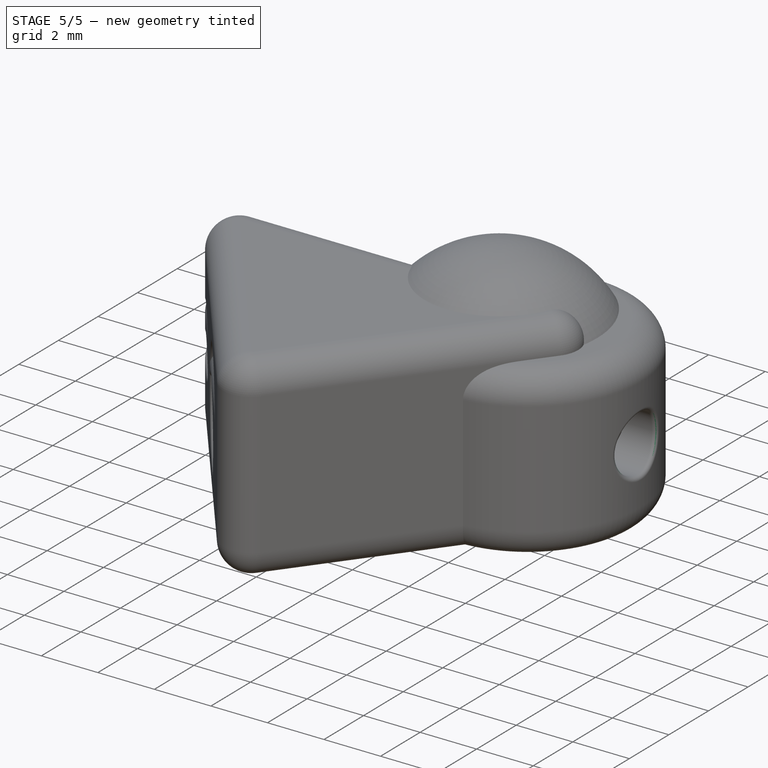
[diagram: stage 5 of 5 — iso view after this stage's code; geometry added in this stage tinted green]
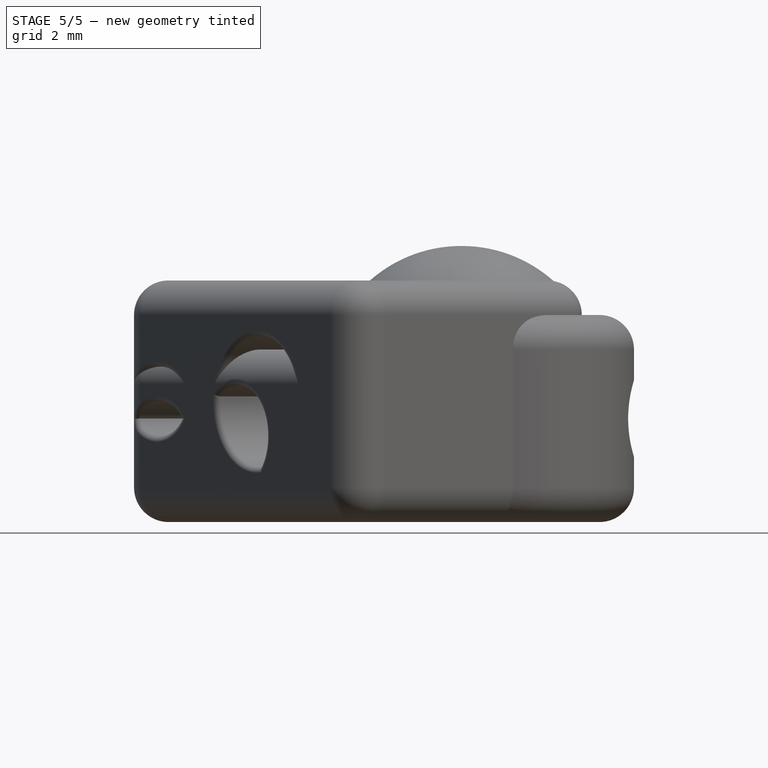
[diagram: stage 5 of 5 — front view after this stage's code; geometry added in this stage tinted green]
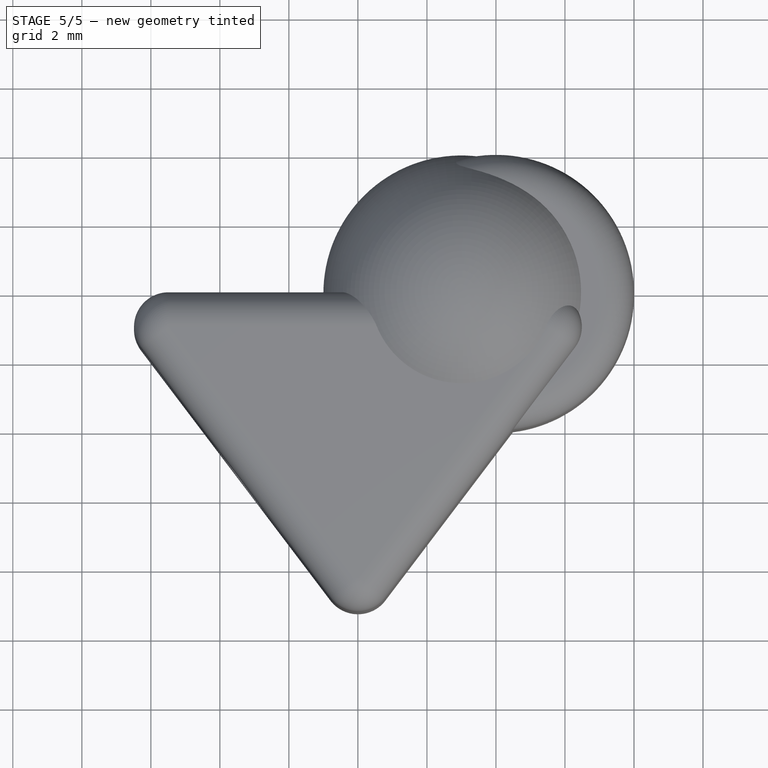
[diagram: stage 5 of 5 — top view after this stage's code; geometry added in this stage tinted green]
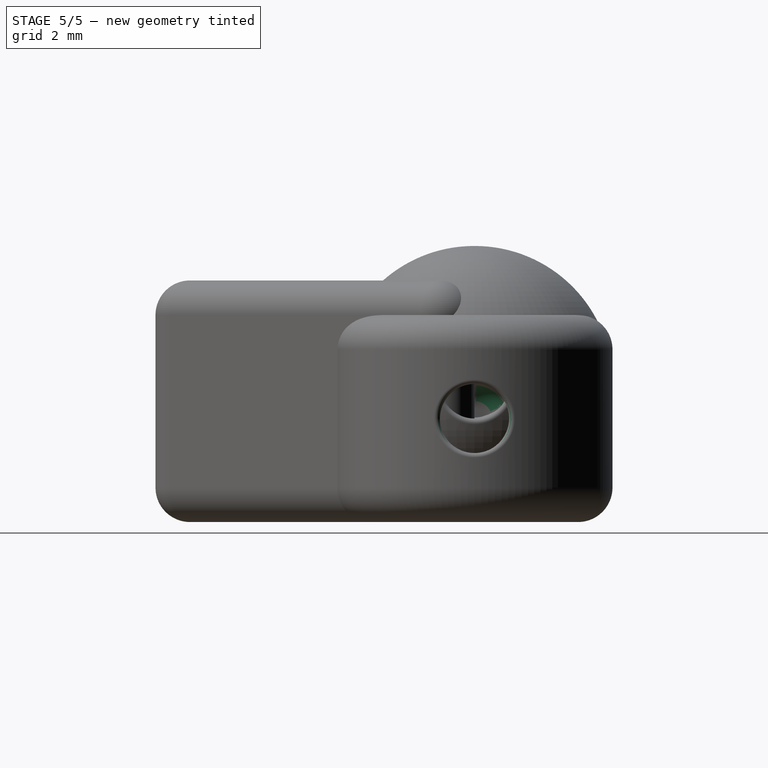
[diagram: stage 5 of 5 — right view after this stage's code; geometry added in this stage tinted green]
FEATURE [Spreadsheet::Sheet] Spreadsheet
  cells = A1=Tri; B1=M3; C1=M4; D1=Universal; E1=M3; F1=M4; A2=TriHeight; B2(TriHeight)==TriLength * 0.66; D2=CableBore; E2(CableBore)==2mm; A3=TriLength; B3(TriLength)==15mm; D3=ExtraDepth; E3(ExtraDepth)==4mm; A4=TriWidth; B4(TriWidth)==5mm; C4(TriWidthM4)==7mm; D4=BoltHole; E4(BoltHole)==2.9mm; F4(BoltHoleM4)==3.8mm; A5=Recommended screw; C5=M4 x 5-6mm; A7=Barrel; B7=M3; C7=M4; A8=BarrelDiameter; B8(BarrelDiameter)==8mm; A9=BarrelWidth; B9(BarrelWidth)==6mm; A10=Recommended screw; C10=M4 x 3.5-4mm; A12=Ball; B12=M3; C12=M4; A13=BallDiameter; B13(BallDiameter)==7mm; C13(BallDiameterM4)==8mm; A14=Recommended screw; C14=M4 x 3.5-4mm
FEATURE [Sketcher::SketchObject] Sketch002  label="BodySketch-Barrel"
  FullyConstrained = true
  MapMode = 5
  Support = -> [XY_Plane001]
  expr: .Constraints.BarrelRadius = Spreadsheet.BarrelDiameter / 2
  expr: .Constraints.Offset = Spreadsheet.ExtraDepth
  sketch-geometry (1):
    g0: Circle CenterX=4 CenterY=0 CenterZ=0 NormalX=0 NormalY=0 NormalZ=1 AngleXU=0 Radius=4
  constraints (3):
    c: PointOnObject(g0,g-1)
    c: DistanceX(g-1,g0) = 4  'Offset'
    c: Radius(g0) = 4  'BarrelRadius'
FEATURE [PartDesign::Pad] Pad001  label="Body-Barrel"
  Direction = (1,1,1)
  Length = 6
  Length2 = 100
  Profile = -> Sketch002
  Type = 0
  expr: Length = Spreadsheet.BarrelWidth
FEATURE [PartDesign::Hole] Hole  label="BoltHole-Barrel-m3"
  BaseFeature = -> Pad001
  Depth = 3.25
  DepthType = 0
  Diameter = 2.9
  DrillForDepth = false
  DrillPoint = 0
  DrillPointAngle = 118
  HoleCutCountersinkAngle = 90
  HoleCutCustomValues = false
  HoleCutDepth = 0
  HoleCutDiameter = 3
  HoleCutType = 0
  ModelActualThread = false
  Profile = -> Pad001 [Face3]
  Refine = true
  Tapered = false
  TaperedAngle = 90
  ThreadAngle = 60
  ThreadClass = 0
  ThreadCutOffInner = 0.0378886
  ThreadCutOffOuter = 0.0757772
  ThreadDirection = 0
  ThreadFit = 0
  ThreadPitch = 0.35
  ThreadSize = 0
  ThreadType = 0
  Threaded = false
  expr: Depth = Spreadsheet.BarrelWidth / 2 + 0.25mm
  expr: Diameter = Spreadsheet.BoltHole
FEATURE [Sketcher::SketchObject] Sketch003  label="BarrelCableHoleSketch"
  AttachmentOffset = pos=(0,0,1) rot=(0,0,1;0rad)
  ExternalGeometry = -> [Hole]
  FullyConstrained = true
  MapMode = 5
  Placement = pos=(1,-2e-16,2e-16) rot=(0.57735,0.57735,0.57735;2.0944rad)
  Support = -> [YZ_Plane001]
  expr: Constraints[7] = Spreadsheet.CableBore
  sketch-geometry (3):
    g0: LineSegment StartX=0 StartY=6 StartZ=0 EndX=0 EndY=3 EndZ=0
    g1: LineSegment StartX=0 StartY=3 StartZ=0 EndX=0 EndY=-9e-16 EndZ=0
    g2: Circle CenterX=0 CenterY=3 CenterZ=0 NormalX=0 NormalY=0 NormalZ=1 AngleXU=0 Radius=1
  constraints (9):
    c: PointOnObject(g0,g-2)
    c: PointOnObject(g0,g-2)
    c: Coincident(g1,g0)
    c: PointOnObject(g1,g-2)
    c: PointOnObject(g1,g-4)
    c: Equal(g1,g0)
    c: Coincident(g2,g0)
    c: Diameter(g2) = 2
    c: PointOnObject(g0,g-3)
FEATURE [PartDesign::Pocket] Pocket  label="CableHole-Barrel-m3"
  BaseFeature = -> Hole
  Length = 5
  Length2 = 100
  Profile = -> Sketch003
  Refine = true
  Reversed = true
  Type = 1
FEATURE [PartDesign::Fillet] Fillet002  label="FilletEdges-Barrel-m3"
  Base = -> Pocket [Edge1,Edge5]
  BaseFeature = -> Pocket
  Radius = 1.5
  SupportTransform = false
FEATURE [PartDesign::Fillet] Fillet003  label="FilletCableHoleEdge-Barrel-m3"
  Base = -> Fillet002 [Edge7,Edge5,Edge3]
  BaseFeature = -> Fillet002
  Radius = 0.13
  SupportTransform = false
FEATURE [PartDesign::Plane] DatumPlane  label="CableHoleDepth-Tri-m3"
  AttachmentOffset = pos=(0,0,-4) rot=(0,0,1;0rad)
  Length = 60
  MapMode = 5
  Placement = pos=(4,-9e-16,9e-16) rot=(-0.57735,0.57735,0.57735;4.18879rad)
  ResizeMode = 0
  Support = -> [YZ_Plane]
  Width = 60
  expr: .AttachmentOffset.Base.z = -Spreadsheet.ExtraDepth
FEATURE [Sketcher::SketchObject] Sketch009  label="CableHoleSketch-Tri-m3"
  FullyConstrained = false
  MapMode = 5
  Placement = pos=(4,-9e-16,9e-16) rot=(-0.57735,0.57735,0.57735;4.18879rad)
  Support = -> [DatumPlane]
  expr: Constraints[0] = Spreadsheet.CableBore
  sketch-geometry (2):
    g0: Circle CenterX=2.10386 CenterY=2.5 CenterZ=0 NormalX=0 NormalY=0 NormalZ=1 AngleXU=0 Radius=1
    g1: LineSegment StartX=1.60386 StartY=2.5 StartZ=0 EndX=2.10386 EndY=2.5 EndZ=0
  constraints (3):
    c: Diameter(g0) = 2
    c: Coincident(g0,g1)
    c: DistanceX(g1,g1) = 0.5
FEATURE [PartDesign::Fillet] Fillet008  label="FilletCableHoleInside-Barrel-m3"
  Base = -> Fillet003 [Face12]
  BaseFeature = -> Fillet003
  Radius = 0.75
  SupportTransform = false
FEATURE [PartDesign::Fillet] Fillet012  label="FilletCableHoleEdge-Barrel-m4"
  Base = -> Fillet011 [Edge7,Edge5,Edge3]
  BaseFeature = -> Fillet011
  Radius = 0.13
  SupportTransform = false
FEATURE [PartDesign::Fillet] Fillet013  label="FilletCableHoleInside-Barrel-m4"
  Base = -> Fillet012 [Face12]
  BaseFeature = -> Fillet012
  Radius = 0.5
  SupportTransform = false
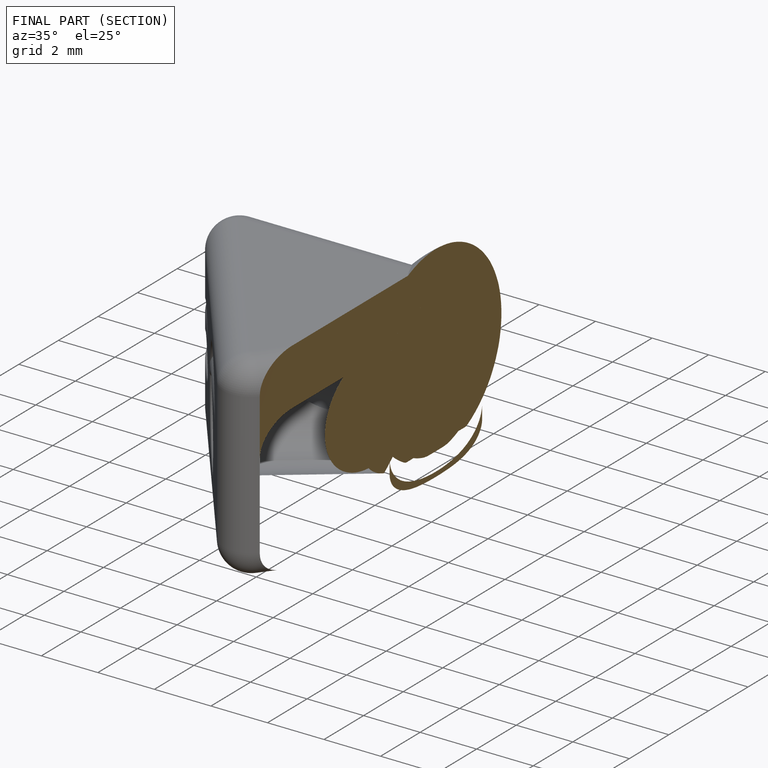
[diagram: finished part — half-section view (interior)]
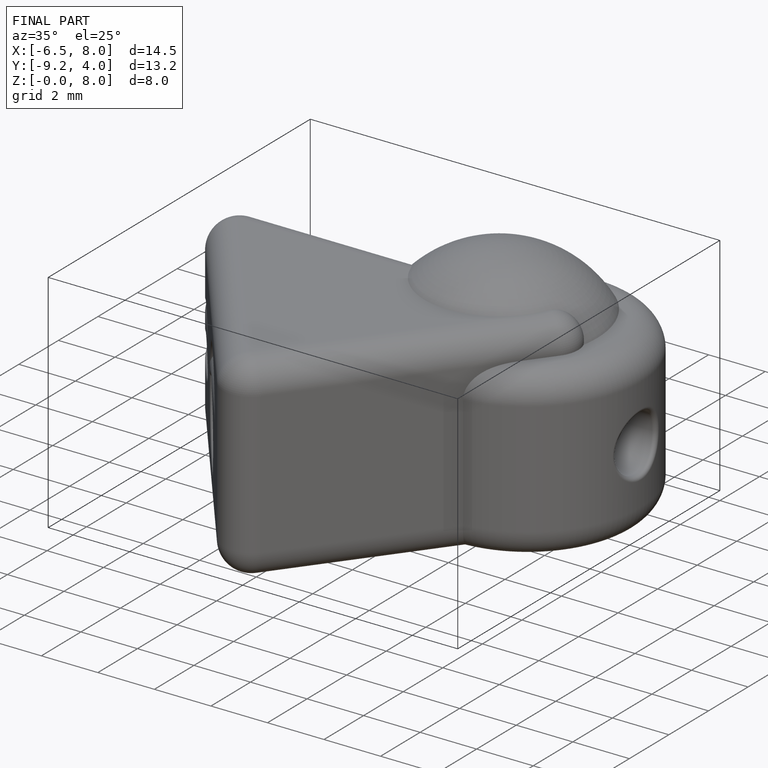
[diagram: finished part — iso view with bounding-box wireframe]
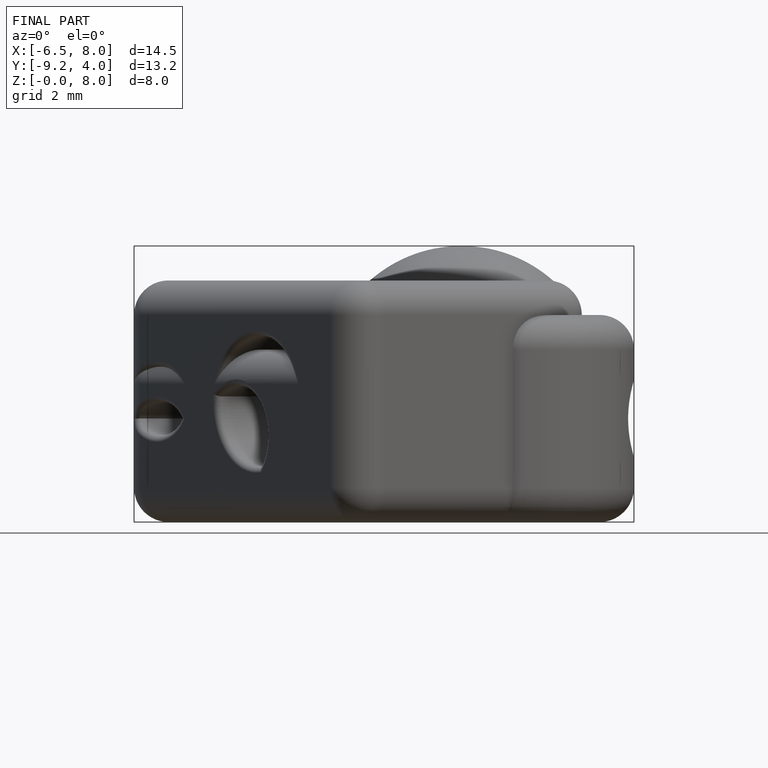
[diagram: finished part — front view with bounding-box wireframe]
